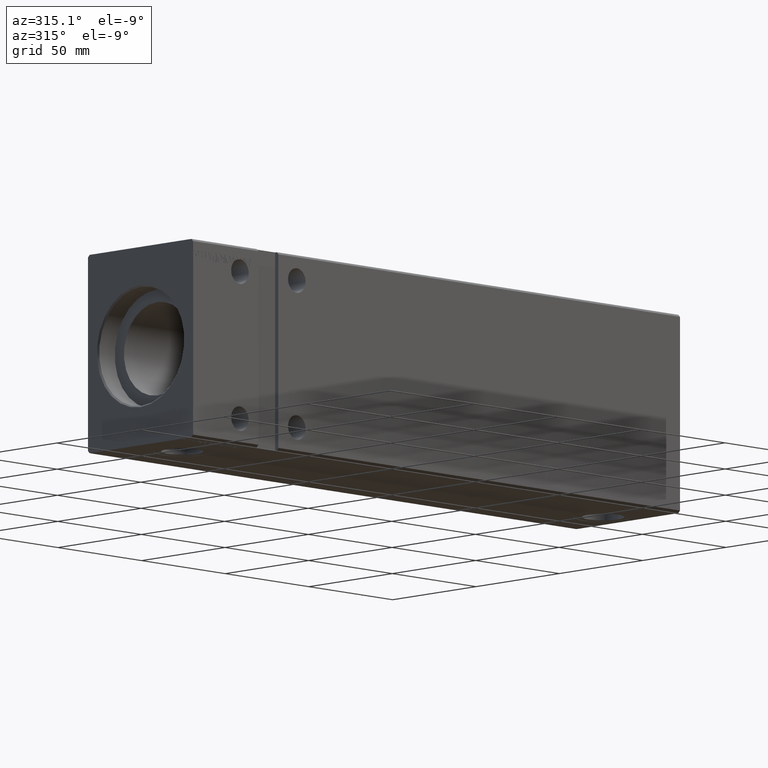
[diagram: clean part render]
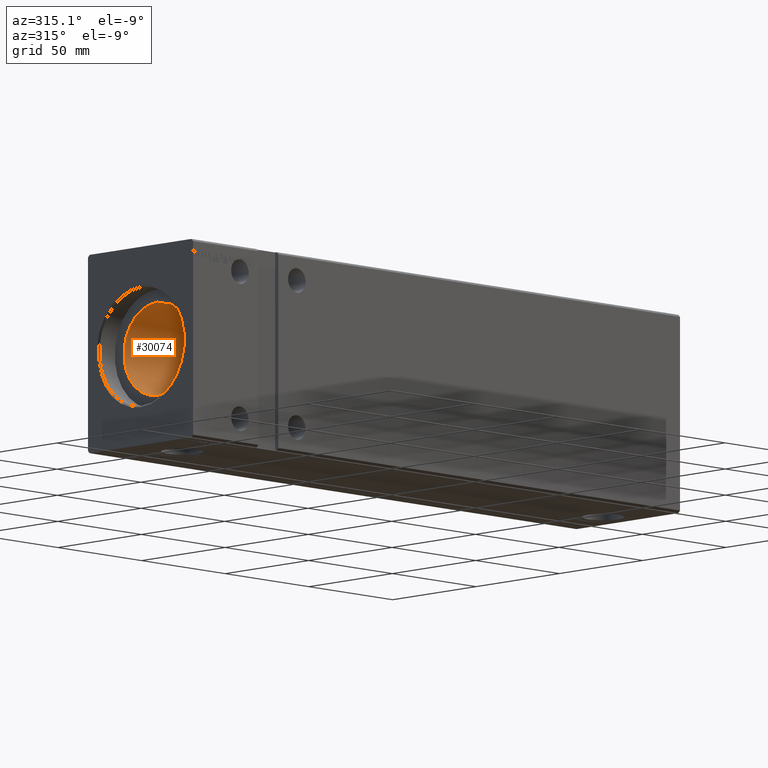
[diagram: same view with one face highlighted and labeled with its STEP entity id]
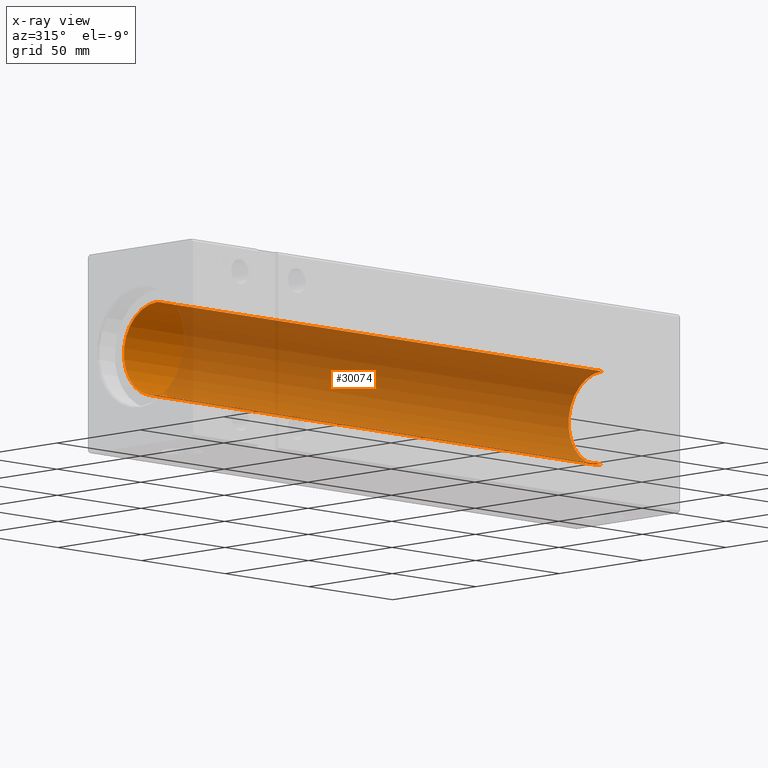
[diagram: x-ray of the same camera — body ghosted, the highlighted face saturated]
A machine part, auxiliary view. The second image highlights one B-rep face of the part: STEP entity #30074.
The next image is the same camera in x-ray: the body ghosted, the highlighted face saturated — about 89% of this face is hidden behind the body in this view.
In plain terms, the highlighted cylindrical surface (partial cylindrical patch) has radius 20 mm, axis along (-1, -0, -0).
Its self-contained STEP definition (entity closure, byte-faithful):
#763 = DIRECTION ( 'NONE',  ( -1.000000000000000000, -0.000000000000000000, -0.000000000000000000 ) ) ;
#2688 = CARTESIAN_POINT ( 'NONE',  ( 275.6999999999999886, 0.000000000000000000, 0.000000000000000000 ) ) ;
#2912 = VERTEX_POINT ( 'NONE', #5381 ) ;
#5009 = CARTESIAN_POINT ( 'NONE',  ( 10.00000000000000888, 2.449293598294706513E-15, -20.00000000000000000 ) ) ;
#5048 = DIRECTION ( 'NONE',  ( -1.000000000000000000, 0.000000000000000000, 0.000000000000000000 ) ) ;
#5279 = EDGE_CURVE ( 'NONE', #2912, #7242, #20527, .T. ) ;
#5381 = CARTESIAN_POINT ( 'NONE',  ( 10.00000000000000888, 0.000000000000000000, 20.00000000000000000 ) ) ;
#6548 = LINE ( 'NONE', #12562, #40099 ) ;
#6955 = EDGE_CURVE ( 'NONE', #17201, #2912, #16929, .T. ) ;
#7242 = VERTEX_POINT ( 'NONE', #5009 ) ;
#12556 = ORIENTED_EDGE ( 'NONE', *, *, #25765, .F. ) ;
#12562 = CARTESIAN_POINT ( 'NONE',  ( 275.6999999999999886, 2.449293598294706513E-15, -20.00000000000000000 ) ) ;
#12779 = CARTESIAN_POINT ( 'NONE',  ( 10.00000000000000888, 0.000000000000000000, 0.000000000000000000 ) ) ;
#15407 = AXIS2_PLACEMENT_3D ( 'NONE', #39406, #5048, #24092 ) ;
#16097 = CIRCLE ( 'NONE', #15407, 20.00000000000000000 ) ;
#16929 = LINE ( 'NONE', #38852, #27505 ) ;
#17201 = VERTEX_POINT ( 'NONE', #23912 ) ;
#18433 = FACE_OUTER_BOUND ( 'NONE', #30127, .T. ) ;
#20527 = CIRCLE ( 'NONE', #31081, 20.00000000000000000 ) ;
#23912 = CARTESIAN_POINT ( 'NONE',  ( 275.6999999999999886, 0.000000000000000000, 20.00000000000000000 ) ) ;
#24092 = DIRECTION ( 'NONE',  ( 0.000000000000000000, 0.000000000000000000, 1.000000000000000000 ) ) ;
#25264 = DIRECTION ( 'NONE',  ( 0.000000000000000000, 0.000000000000000000, 1.000000000000000000 ) ) ;
#25325 = ORIENTED_EDGE ( 'NONE', *, *, #37708, .F. ) ;
#25671 = VERTEX_POINT ( 'NONE', #34013 ) ;
#25765 = EDGE_CURVE ( 'NONE', #17201, #25671, #16097, .T. ) ;
#27505 = VECTOR ( 'NONE', #763, 1000.000000000000000 ) ;
#27963 = DIRECTION ( 'NONE',  ( -1.000000000000000000, -0.000000000000000000, -0.000000000000000000 ) ) ;
#28318 = DIRECTION ( 'NONE',  ( 0.000000000000000000, 0.000000000000000000, 1.000000000000000000 ) ) ;
#28713 = DIRECTION ( 'NONE',  ( -1.000000000000000000, -0.000000000000000000, -0.000000000000000000 ) ) ;
#30074 = ADVANCED_FACE ( 'NONE', ( #18433 ), #31051, .F. ) ;
#30076 = ORIENTED_EDGE ( 'NONE', *, *, #5279, .T. ) ;
#30085 = ORIENTED_EDGE ( 'NONE', *, *, #6955, .T. ) ;
#30127 = EDGE_LOOP ( 'NONE', ( #25325, #12556, #30085, #30076 ) ) ;
#31051 = CYLINDRICAL_SURFACE ( 'NONE', #33388, 20.00000000000000000 ) ;
#31081 = AXIS2_PLACEMENT_3D ( 'NONE', #12779, #40505, #28318 ) ;
#33388 = AXIS2_PLACEMENT_3D ( 'NONE', #2688, #27963, #25264 ) ;
#34013 = CARTESIAN_POINT ( 'NONE',  ( 275.6999999999999886, 2.449293598294706513E-15, -20.00000000000000000 ) ) ;
#37708 = EDGE_CURVE ( 'NONE', #25671, #7242, #6548, .T. ) ;
#38852 = CARTESIAN_POINT ( 'NONE',  ( 275.6999999999999886, 0.000000000000000000, 20.00000000000000000 ) ) ;
#39406 = CARTESIAN_POINT ( 'NONE',  ( 275.6999999999999886, 0.000000000000000000, 0.000000000000000000 ) ) ;
#40099 = VECTOR ( 'NONE', #28713, 1000.000000000000000 ) ;
#40505 = DIRECTION ( 'NONE',  ( -1.000000000000000000, 0.000000000000000000, 0.000000000000000000 ) ) ;